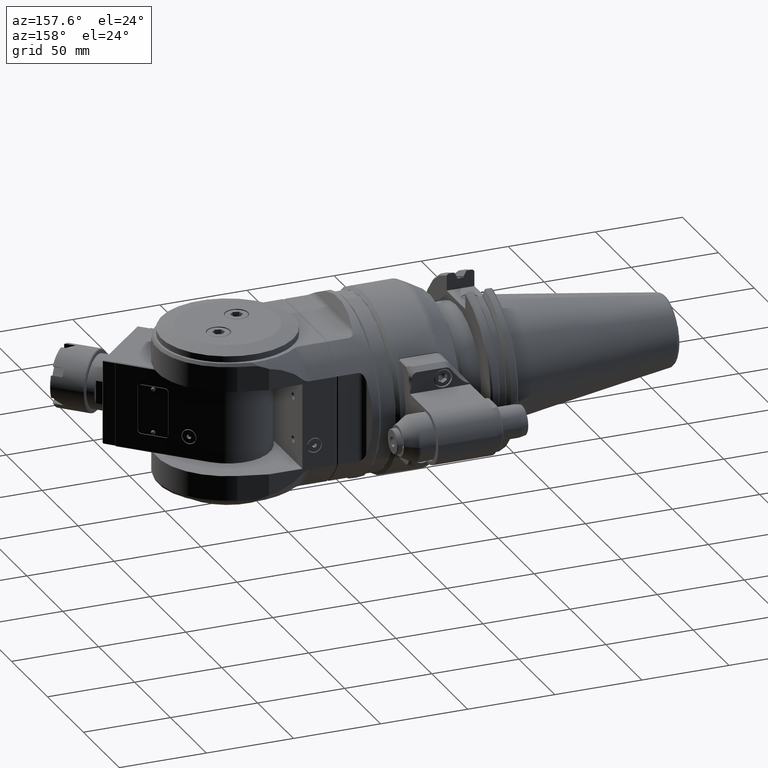
[diagram: clean part render]
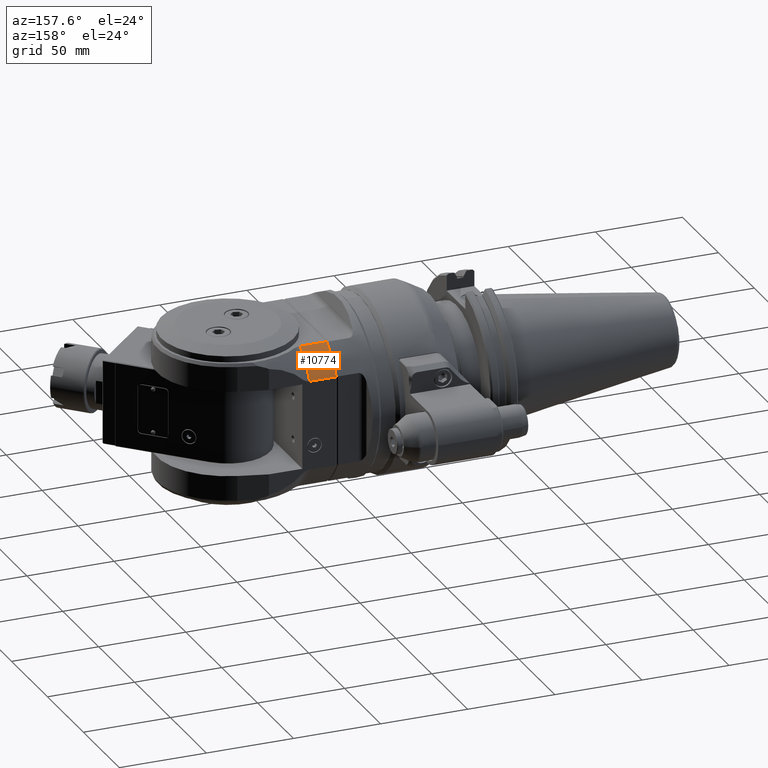
[diagram: same view with one face highlighted and labeled with its STEP entity id]
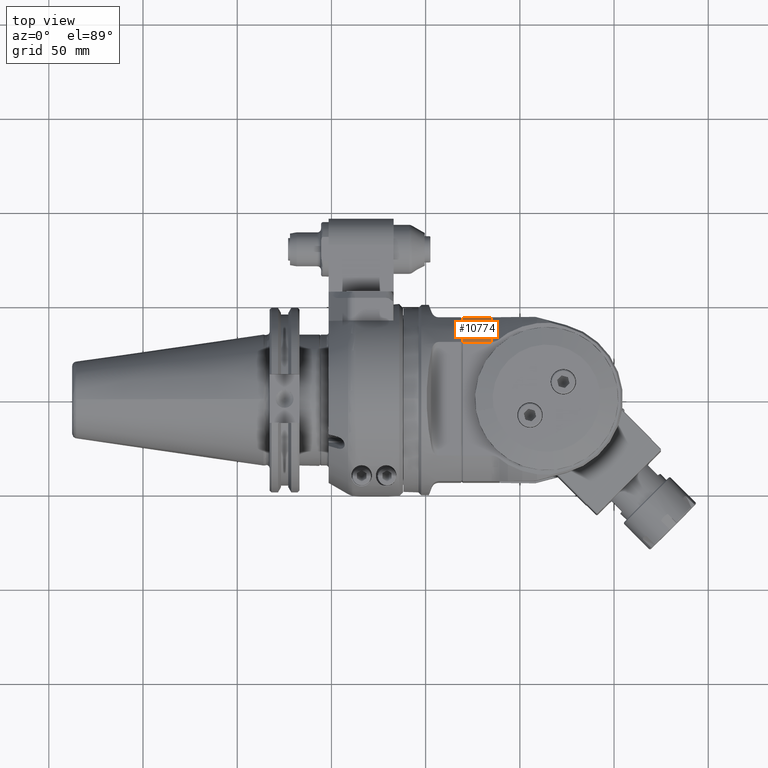
[diagram: same view with one face highlighted and labeled with its STEP entity id]
A machine part, auxiliary view. The second image highlights one B-rep face of the part: STEP entity #10774.
A second angle (top view) of the same face is appended — the face is thin or edge-on in the first view.
In plain terms, the highlighted cylindrical surface (partial cylindrical patch) has radius 50.5 mm, axis along (1, -0, 0).
Its self-contained STEP definition (entity closure, byte-faithful):
#1208=FACE_OUTER_BOUND('',#1901,.T.);
#1901=EDGE_LOOP('',(#8743,#8744,#8745,#8746));
#2526=CIRCLE('',#11807,50.5);
#2528=CIRCLE('',#11810,50.5);
#3237=LINE('',#58786,#4053);
#3243=LINE('',#58877,#4059);
#4053=VECTOR('',#13896,15.28305337357);
#4059=VECTOR('',#13942,15.28305337357);
#5004=VERTEX_POINT('',#58783);
#5005=VERTEX_POINT('',#58785);
#5022=VERTEX_POINT('',#58868);
#5024=VERTEX_POINT('',#58876);
#6322=EDGE_CURVE('',#5005,#5004,#3237,.T.);
#6348=EDGE_CURVE('',#5022,#5004,#2526,.T.);
#6351=EDGE_CURVE('',#5022,#5024,#3243,.T.);
#6352=EDGE_CURVE('',#5005,#5024,#2528,.T.);
#8743=ORIENTED_EDGE('',*,*,#6322,.T.);
#8744=ORIENTED_EDGE('',*,*,#6348,.F.);
#8745=ORIENTED_EDGE('',*,*,#6351,.T.);
#8746=ORIENTED_EDGE('',*,*,#6352,.F.);
#10391=CYLINDRICAL_SURFACE('',#11809,50.5);
#10774=ADVANCED_FACE('',(#1208),#10391,.T.);
#11807=AXIS2_PLACEMENT_3D('',#58869,#13936,#13937);
#11809=AXIS2_PLACEMENT_3D('',#58875,#13940,#13941);
#11810=AXIS2_PLACEMENT_3D('',#58878,#13943,#13944);
#13896=DIRECTION('',(-1.,0.,-1.301781529841E-14));
#13936=DIRECTION('center_axis',(-1.,0.,0.));
#13937=DIRECTION('ref_axis',(0.,-0.597350618970212,-0.801980198019817));
#13940=DIRECTION('center_axis',(1.,0.,0.));
#13941=DIRECTION('ref_axis',(0.,-0.744037342783918,-0.668138034049138));
#13942=DIRECTION('',(1.,3.091731133372E-14,-1.115812739863E-14));
#13943=DIRECTION('center_axis',(1.,0.,0.));
#13944=DIRECTION('ref_axis',(0.,-0.72629256498942,-0.687385706893218));
#58783=CARTESIAN_POINT('',(62.5,-43.5,-25.65151067676));
#58785=CARTESIAN_POINT('',(77.78305337357,-43.5,-25.65151067676));
#58786=CARTESIAN_POINT('',(77.78305337357,-43.5,-25.65151067676));
#58868=CARTESIAN_POINT('',(62.5,-30.166206258,-40.5));
#58869=CARTESIAN_POINT('Origin',(62.5,0.,0.));
#58875=CARTESIAN_POINT('Origin',(74.5,0.,0.));
#58876=CARTESIAN_POINT('',(77.78305337357,-30.166206258,-40.5));
#58877=CARTESIAN_POINT('',(62.5,-30.166206258,-40.5));
#58878=CARTESIAN_POINT('Origin',(77.78305337357,0.,0.));